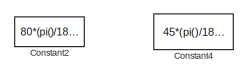
[diagram: root canvas - part 1/3, top center region]
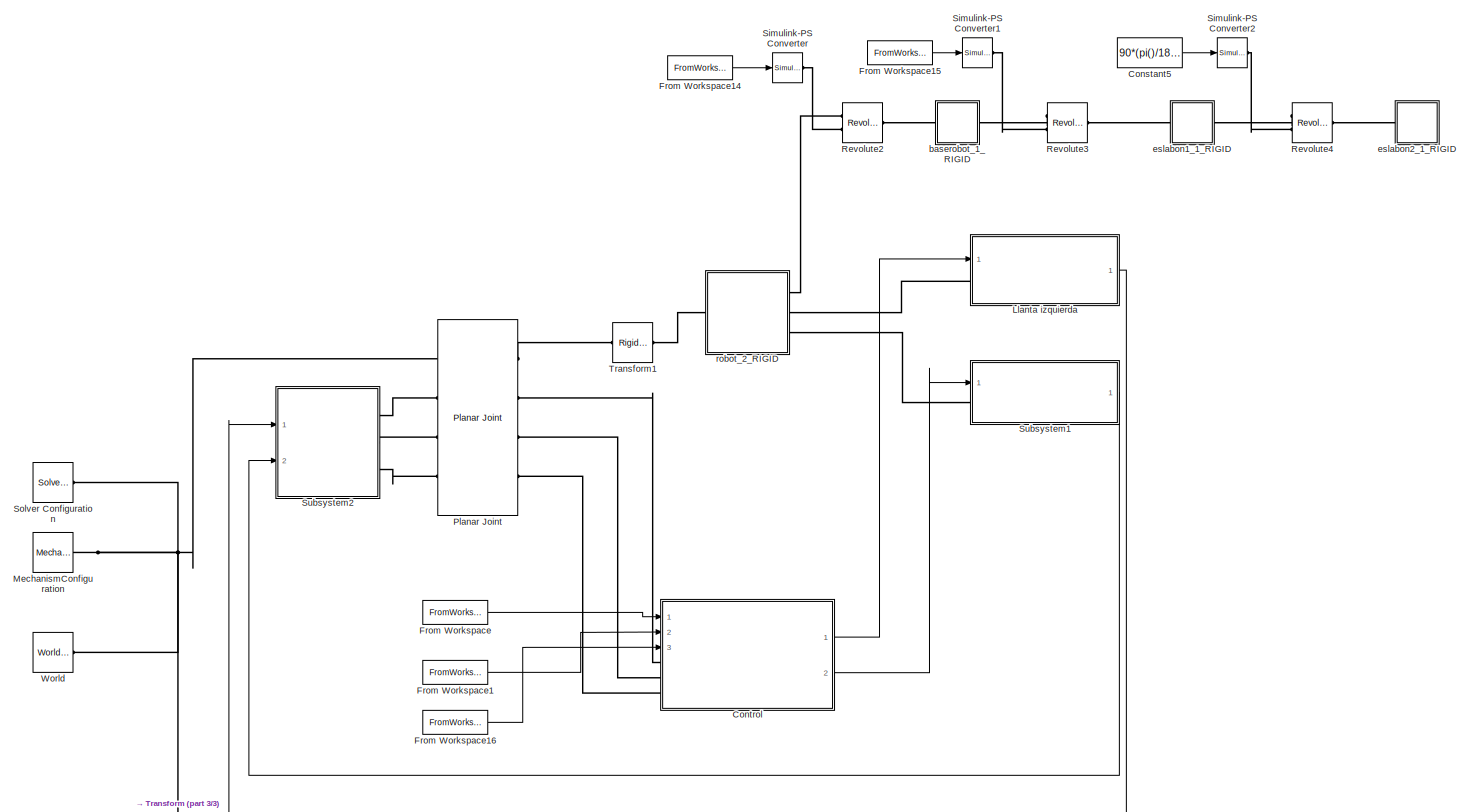
[diagram: root canvas - part 2/3, full width, top band]
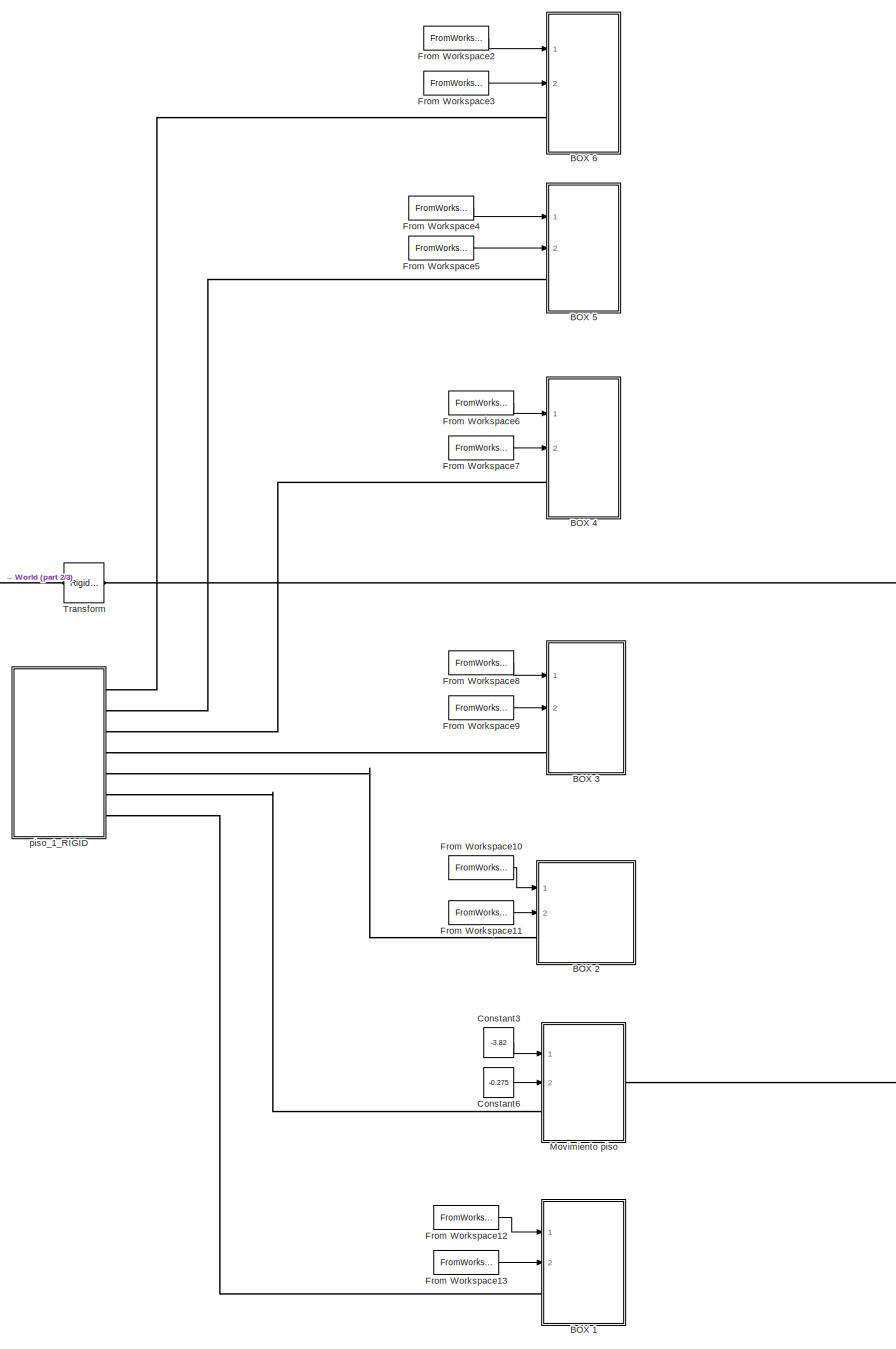
[diagram: root canvas - part 3/3, bottom center region]
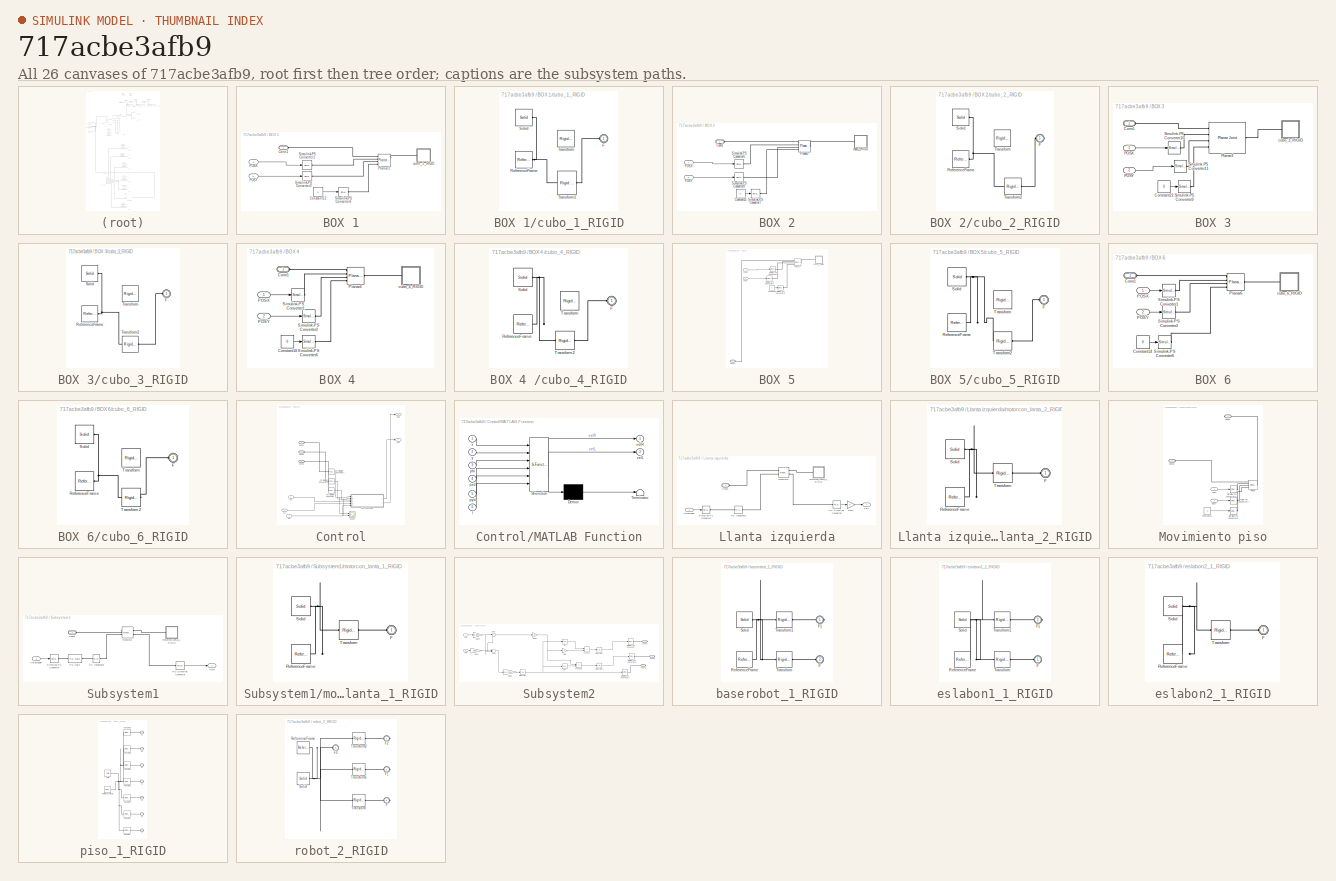
[diagram: thumbnail index - all 26 canvases of the model, root first then tree order]
MODEL slx_717acbe3afb9
KIND model
CONFIG AbsTol = auto
CONFIG EnableMultiTasking = off
CONFIG FixedStep = 0.01
CONFIG MaxStep = auto
CONFIG MinStep = auto
CONFIG RelTol = 1e-6
CONFIG SampleTimeConstraint = Unconstrained
CONFIG Solver = VariableStepAuto
CONFIG SolverName = VariableStepAuto
CONFIG StartTime = 0.0
CONFIG StopTime = 200
WORKSPACE source: external: MATLAB File  (data not in archive)
BLOCK [SubSystem] BOX 1
  Ports = [2, 0, 0, 0, 0, 1]
  RequestExecContextInheritance = off
BLOCK [PMIOPort] BOX 1/Conn1
  Side = Left
BLOCK [Constant] BOX 1/Constant12
  Value = 0
BLOCK [Inport] BOX 1/POSX
  IconDisplay = Port number
BLOCK [Inport] BOX 1/POSY
  IconDisplay = Port number
  Port = 2
BLOCK [Reference] BOX 1/Planar1  REF=sm_lib/Joints/Planar Joint
  Ports = [0, 0, 0, 0, 0, 4, 3]
  SourceBlock = sm_lib/Joints/Planar Joint
  SourceProductBaseCode = MS
  SourceProductName = Simscape Multibody
  SourceType = Planar Joint
BLOCK [Reference] BOX 1/Simulink-PS Converter1  REF=nesl_utility/Simulink-PS
Converter
  Ports = [1, 0, 0, 0, 0, 0, 1]
  SourceBlock = nesl_utility/Simulink-PS\nConverter
  SourceProductBaseCode = SS
  SourceProductName = Simscape
  SourceType = Simulink-PS\nConverter
BLOCK [Reference] BOX 1/Simulink-PS Converter2  REF=nesl_utility/Simulink-PS
Converter
  Ports = [1, 0, 0, 0, 0, 0, 1]
  SourceBlock = nesl_utility/Simulink-PS\nConverter
  SourceProductBaseCode = SS
  SourceProductName = Simscape
  SourceType = Simulink-PS\nConverter
BLOCK [Reference] BOX 1/Simulink-PS Converter6  REF=nesl_utility/Simulink-PS
Converter
  Ports = [1, 0, 0, 0, 0, 0, 1]
  SourceBlock = nesl_utility/Simulink-PS\nConverter
  SourceProductBaseCode = SS
  SourceProductName = Simscape
  SourceType = Simulink-PS\nConverter
BLOCK [SubSystem] BOX 1/cubo_1_RIGID
  Ports = [0, 0, 0, 0, 0, 1]
  RequestExecContextInheritance = off
BLOCK [PMIOPort] BOX 1/cubo_1_RIGID/F
  Side = Left
BLOCK [Reference] BOX 1/cubo_1_RIGID/ReferenceFrame  REF=sm_lib/Frames and
Transforms/Reference
Frame
  Ports = [0, 0, 0, 0, 0, 0, 1]
  SourceBlock = sm_lib/Frames and\nTransforms/Reference\nFrame
  SourceProductBaseCode = MS
  SourceProductName = Simscape Multibody
  SourceType = Reference\nFrame
BLOCK [Reference] BOX 1/cubo_1_RIGID/Solid  REF=sm_lib/Body Elements/Solid
  Ports = [0, 0, 0, 0, 0, 0, 1]
  SourceBlock = sm_lib/Body Elements/Solid
  SourceProductBaseCode = MS
  SourceProductName = Simscape Multibody
  SourceType = Solid
BLOCK [Reference] BOX 1/cubo_1_RIGID/Transform  REF=sm_lib/Frames and
Transforms/Rigid
Transform
  Ports = [0, 0, 0, 0, 0, 1, 1]
  SourceBlock = sm_lib/Frames and\nTransforms/Rigid\nTransform
  SourceProductBaseCode = MS
  SourceProductName = Simscape Multibody
  SourceType = Rigid\nTransform
BLOCK [Reference] BOX 1/cubo_1_RIGID/Transform1  REF=sm_lib/Frames and
Transforms/Rigid
Transform
  Ports = [0, 0, 0, 0, 0, 1, 1]
  SourceBlock = sm_lib/Frames and\nTransforms/Rigid\nTransform
  SourceProductBaseCode = MS
  SourceProductName = Simscape Multibody
  SourceType = Rigid\nTransform
BLOCK [SubSystem] BOX 2
  Ports = [2, 0, 0, 0, 0, 1]
  RequestExecContextInheritance = off
BLOCK [PMIOPort] BOX 2/Conn1
  Side = Left
BLOCK [Constant] BOX 2/Constant13
  Value = 0
BLOCK [Inport] BOX 2/POSX
  IconDisplay = Port number
BLOCK [Inport] BOX 2/POSY
  IconDisplay = Port number
  Port = 2
BLOCK [Reference] BOX 2/Planar2  REF=sm_lib/Joints/Planar Joint
  Ports = [0, 0, 0, 0, 0, 4, 1]
  SourceBlock = sm_lib/Joints/Planar Joint
  SourceProductBaseCode = MS
  SourceProductName = Simscape Multibody
  SourceType = Planar Joint
BLOCK [Reference] BOX 2/Simulink-PS Converter6  REF=nesl_utility/Simulink-PS
Converter
  Ports = [1, 0, 0, 0, 0, 0, 1]
  SourceBlock = nesl_utility/Simulink-PS\nConverter
  SourceProductBaseCode = SS
  SourceProductName = Simscape
  SourceType = Simulink-PS\nConverter
BLOCK [Reference] BOX 2/Simulink-PS Converter7  REF=nesl_utility/Simulink-PS
Converter
  Ports = [1, 0, 0, 0, 0, 0, 1]
  SourceBlock = nesl_utility/Simulink-PS\nConverter
  SourceProductBaseCode = SS
  SourceProductName = Simscape
  SourceType = Simulink-PS\nConverter
BLOCK [Reference] BOX 2/Simulink-PS Converter8  REF=nesl_utility/Simulink-PS
Converter
  Ports = [1, 0, 0, 0, 0, 0, 1]
  SourceBlock = nesl_utility/Simulink-PS\nConverter
  SourceProductBaseCode = SS
  SourceProductName = Simscape
  SourceType = Simulink-PS\nConverter
BLOCK [SubSystem] BOX 2/cubo_2_RIGID
  Ports = [0, 0, 0, 0, 0, 1]
  RequestExecContextInheritance = off
BLOCK [PMIOPort] BOX 2/cubo_2_RIGID/F
  Side = Left
BLOCK [Reference] BOX 2/cubo_2_RIGID/ReferenceFrame  REF=sm_lib/Frames and
Transforms/Reference
Frame
  Ports = [0, 0, 0, 0, 0, 0, 1]
  SourceBlock = sm_lib/Frames and\nTransforms/Reference\nFrame
  SourceProductBaseCode = MS
  SourceProductName = Simscape Multibody
  SourceType = Reference\nFrame
BLOCK [Reference] BOX 2/cubo_2_RIGID/Solid  REF=sm_lib/Body Elements/Solid
  Ports = [0, 0, 0, 0, 0, 0, 1]
  SourceBlock = sm_lib/Body Elements/Solid
  SourceProductBaseCode = MS
  SourceProductName = Simscape Multibody
  SourceType = Solid
BLOCK [Reference] BOX 2/cubo_2_RIGID/Transform  REF=sm_lib/Frames and
Transforms/Rigid
Transform
  Ports = [0, 0, 0, 0, 0, 1, 1]
  SourceBlock = sm_lib/Frames and\nTransforms/Rigid\nTransform
  SourceProductBaseCode = MS
  SourceProductName = Simscape Multibody
  SourceType = Rigid\nTransform
BLOCK [Reference] BOX 2/cubo_2_RIGID/Transform2  REF=sm_lib/Frames and
Transforms/Rigid
Transform
  Ports = [0, 0, 0, 0, 0, 1, 1]
  SourceBlock = sm_lib/Frames and\nTransforms/Rigid\nTransform
  SourceProductBaseCode = MS
  SourceProductName = Simscape Multibody
  SourceType = Rigid\nTransform
BLOCK [SubSystem] BOX 3
  Ports = [2, 0, 0, 0, 0, 1]
  RequestExecContextInheritance = off
BLOCK [PMIOPort] BOX 3/Conn1
  Side = Left
BLOCK [Constant] BOX 3/Constant21
  Value = 0
BLOCK [Inport] BOX 3/POSX
  IconDisplay = Port number
BLOCK [Inport] BOX 3/POSY
  IconDisplay = Port number
  Port = 2
BLOCK [Reference] BOX 3/Planar3  REF=sm_lib/Joints/Planar Joint
  Ports = [0, 0, 0, 0, 0, 4, 1]
  SourceBlock = sm_lib/Joints/Planar Joint
  SourceProductBaseCode = MS
  SourceProductName = Simscape Multibody
  SourceType = Planar Joint
BLOCK [Reference] BOX 3/Simulink-PS Converter10  REF=nesl_utility/Simulink-PS
Converter
  Ports = [1, 0, 0, 0, 0, 0, 1]
  SourceBlock = nesl_utility/Simulink-PS\nConverter
  SourceProductBaseCode = SS
  SourceProductName = Simscape
  SourceType = Simulink-PS\nConverter
BLOCK [Reference] BOX 3/Simulink-PS Converter11  REF=nesl_utility/Simulink-PS
Converter
  Ports = [1, 0, 0, 0, 0, 0, 1]
  SourceBlock = nesl_utility/Simulink-PS\nConverter
  SourceProductBaseCode = SS
  SourceProductName = Simscape
  SourceType = Simulink-PS\nConverter
BLOCK [Reference] BOX 3/Simulink-PS Converter9  REF=nesl_utility/Simulink-PS
Converter
  Ports = [1, 0, 0, 0, 0, 0, 1]
  SourceBlock = nesl_utility/Simulink-PS\nConverter
  SourceProductBaseCode = SS
  SourceProductName = Simscape
  SourceType = Simulink-PS\nConverter
BLOCK [SubSystem] BOX 3/cubo_3_RIGID
  Ports = [0, 0, 0, 0, 0, 1]
  RequestExecContextInheritance = off
BLOCK [PMIOPort] BOX 3/cubo_3_RIGID/F
  Side = Left
BLOCK [Reference] BOX 3/cubo_3_RIGID/ReferenceFrame  REF=sm_lib/Frames and
Transforms/Reference
Frame
  Ports = [0, 0, 0, 0, 0, 0, 1]
  SourceBlock = sm_lib/Frames and\nTransforms/Reference\nFrame
  SourceProductBaseCode = MS
  SourceProductName = Simscape Multibody
  SourceType = Reference\nFrame
BLOCK [Reference] BOX 3/cubo_3_RIGID/Solid  REF=sm_lib/Body Elements/Solid
  Ports = [0, 0, 0, 0, 0, 0, 1]
  SourceBlock = sm_lib/Body Elements/Solid
  SourceProductBaseCode = MS
  SourceProductName = Simscape Multibody
  SourceType = Solid
BLOCK [Reference] BOX 3/cubo_3_RIGID/Transform  REF=sm_lib/Frames and
Transforms/Rigid
Transform
  Ports = [0, 0, 0, 0, 0, 1, 1]
  SourceBlock = sm_lib/Frames and\nTransforms/Rigid\nTransform
  SourceProductBaseCode = MS
  SourceProductName = Simscape Multibody
  SourceType = Rigid\nTransform
BLOCK [Reference] BOX 3/cubo_3_RIGID/Transform2  REF=sm_lib/Frames and
Transforms/Rigid
Transform
  Ports = [0, 0, 0, 0, 0, 1, 1]
  SourceBlock = sm_lib/Frames and\nTransforms/Rigid\nTransform
  SourceProductBaseCode = MS
  SourceProductName = Simscape Multibody
  SourceType = Rigid\nTransform
BLOCK [SubSystem] BOX 4 
  Ports = [2, 0, 0, 0, 0, 1]
  RequestExecContextInheritance = off
BLOCK [PMIOPort] BOX 4 /Conn1
  Side = Left
BLOCK [Constant] BOX 4 /Constant18
  Value = 0
BLOCK [Inport] BOX 4 /POSX
  IconDisplay = Port number
BLOCK [Inport] BOX 4 /POSY
  IconDisplay = Port number
  Port = 2
BLOCK [Reference] BOX 4 /Planar4  REF=sm_lib/Joints/Planar Joint
  Ports = [0, 0, 0, 0, 0, 4, 1]
  SourceBlock = sm_lib/Joints/Planar Joint
  SourceProductBaseCode = MS
  SourceProductName = Simscape Multibody
  SourceType = Planar Joint
BLOCK [Reference] BOX 4 /Simulink-PS Converter1  REF=nesl_utility/Simulink-PS
Converter
  Ports = [1, 0, 0, 0, 0, 0, 1]
  SourceBlock = nesl_utility/Simulink-PS\nConverter
  SourceProductBaseCode = SS
  SourceProductName = Simscape
  SourceType = Simulink-PS\nConverter
BLOCK [Reference] BOX 4 /Simulink-PS Converter2  REF=nesl_utility/Simulink-PS
Converter
  Ports = [1, 0, 0, 0, 0, 0, 1]
  SourceBlock = nesl_utility/Simulink-PS\nConverter
  SourceProductBaseCode = SS
  SourceProductName = Simscape
  SourceType = Simulink-PS\nConverter
BLOCK [Reference] BOX 4 /Simulink-PS Converter6  REF=nesl_utility/Simulink-PS
Converter
  Ports = [1, 0, 0, 0, 0, 0, 1]
  SourceBlock = nesl_utility/Simulink-PS\nConverter
  SourceProductBaseCode = SS
  SourceProductName = Simscape
  SourceType = Simulink-PS\nConverter
BLOCK [SubSystem] BOX 4 /cubo_4_RIGID
  Ports = [0, 0, 0, 0, 0, 1]
  RequestExecContextInheritance = off
BLOCK [PMIOPort] BOX 4 /cubo_4_RIGID/F
  Side = Left
BLOCK [Reference] BOX 4 /cubo_4_RIGID/ReferenceFrame  REF=sm_lib/Frames and
Transforms/Reference
Frame
  Ports = [0, 0, 0, 0, 0, 0, 1]
  SourceBlock = sm_lib/Frames and\nTransforms/Reference\nFrame
  SourceProductBaseCode = MS
  SourceProductName = Simscape Multibody
  SourceType = Reference\nFrame
BLOCK [Reference] BOX 4 /cubo_4_RIGID/Solid  REF=sm_lib/Body Elements/Solid
  Ports = [0, 0, 0, 0, 0, 0, 1]
  SourceBlock = sm_lib/Body Elements/Solid
  SourceProductBaseCode = MS
  SourceProductName = Simscape Multibody
  SourceType = Solid
BLOCK [Reference] BOX 4 /cubo_4_RIGID/Transform  REF=sm_lib/Frames and
Transforms/Rigid
Transform
  Ports = [0, 0, 0, 0, 0, 1, 1]
  SourceBlock = sm_lib/Frames and\nTransforms/Rigid\nTransform
  SourceProductBaseCode = MS
  SourceProductName = Simscape Multibody
  SourceType = Rigid\nTransform
BLOCK [Reference] BOX 4 /cubo_4_RIGID/Transform2  REF=sm_lib/Frames and
Transforms/Rigid
Transform
  Ports = [0, 0, 0, 0, 0, 1, 1]
  SourceBlock = sm_lib/Frames and\nTransforms/Rigid\nTransform
  SourceProductBaseCode = MS
  SourceProductName = Simscape Multibody
  SourceType = Rigid\nTransform
BLOCK [SubSystem] BOX 5
  Ports = [2, 0, 0, 0, 0, 1]
  RequestExecContextInheritance = off
BLOCK [PMIOPort] BOX 5/Conn1
  Side = Left
BLOCK [Constant] BOX 5/Constant16
  Value = 0
BLOCK [Inport] BOX 5/POSX
  IconDisplay = Port number
BLOCK [Inport] BOX 5/POSY
  IconDisplay = Port number
  Port = 2
BLOCK [Reference] BOX 5/Planar5  REF=sm_lib/Joints/Planar Joint
  Ports = [0, 0, 0, 0, 0, 4, 1]
  SourceBlock = sm_lib/Joints/Planar Joint
  SourceProductBaseCode = MS
  SourceProductName = Simscape Multibody
  SourceType = Planar Joint
BLOCK [Reference] BOX 5/Simulink-PS Converter1  REF=nesl_utility/Simulink-PS
Converter
  Ports = [1, 0, 0, 0, 0, 0, 1]
  SourceBlock = nesl_utility/Simulink-PS\nConverter
  SourceProductBaseCode = SS
  SourceProductName = Simscape
  SourceType = Simulink-PS\nConverter
BLOCK [Reference] BOX 5/Simulink-PS Converter2  REF=nesl_utility/Simulink-PS
Converter
  Ports = [1, 0, 0, 0, 0, 0, 1]
  SourceBlock = nesl_utility/Simulink-PS\nConverter
  SourceProductBaseCode = SS
  SourceProductName = Simscape
  SourceType = Simulink-PS\nConverter
BLOCK [Reference] BOX 5/Simulink-PS Converter6  REF=nesl_utility/Simulink-PS
Converter
  Ports = [1, 0, 0, 0, 0, 0, 1]
  SourceBlock = nesl_utility/Simulink-PS\nConverter
  SourceProductBaseCode = SS
  SourceProductName = Simscape
  SourceType = Simulink-PS\nConverter
BLOCK [SubSystem] BOX 5/cubo_5_RIGID
  Ports = [0, 0, 0, 0, 0, 1]
  RequestExecContextInheritance = off
BLOCK [PMIOPort] BOX 5/cubo_5_RIGID/F
  Side = Left
BLOCK [Reference] BOX 5/cubo_5_RIGID/ReferenceFrame  REF=sm_lib/Frames and
Transforms/Reference
Frame
  Ports = [0, 0, 0, 0, 0, 0, 1]
  SourceBlock = sm_lib/Frames and\nTransforms/Reference\nFrame
  SourceProductBaseCode = MS
  SourceProductName = Simscape Multibody
  SourceType = Reference\nFrame
BLOCK [Reference] BOX 5/cubo_5_RIGID/Solid  REF=sm_lib/Body Elements/Solid
  Ports = [0, 0, 0, 0, 0, 0, 1]
  SourceBlock = sm_lib/Body Elements/Solid
  SourceProductBaseCode = MS
  SourceProductName = Simscape Multibody
  SourceType = Solid
BLOCK [Reference] BOX 5/cubo_5_RIGID/Transform  REF=sm_lib/Frames and
Transforms/Rigid
Transform
  Ports = [0, 0, 0, 0, 0, 1, 1]
  SourceBlock = sm_lib/Frames and\nTransforms/Rigid\nTransform
  SourceProductBaseCode = MS
  SourceProductName = Simscape Multibody
  SourceType = Rigid\nTransform
BLOCK [Reference] BOX 5/cubo_5_RIGID/Transform2  REF=sm_lib/Frames and
Transforms/Rigid
Transform
  Ports = [0, 0, 0, 0, 0, 1, 1]
  SourceBlock = sm_lib/Frames and\nTransforms/Rigid\nTransform
  SourceProductBaseCode = MS
  SourceProductName = Simscape Multibody
  SourceType = Rigid\nTransform
BLOCK [SubSystem] BOX 6
  Ports = [2, 0, 0, 0, 0, 1]
  RequestExecContextInheritance = off
BLOCK [PMIOPort] BOX 6/Conn1
  Side = Left
BLOCK [Constant] BOX 6/Constant14
  Value = 0
BLOCK [Inport] BOX 6/POSX
  IconDisplay = Port number
BLOCK [Inport] BOX 6/POSY
  IconDisplay = Port number
  Port = 2
BLOCK [Reference] BOX 6/Planar6  REF=sm_lib/Joints/Planar Joint
  Ports = [0, 0, 0, 0, 0, 4, 1]
  SourceBlock = sm_lib/Joints/Planar Joint
  SourceProductBaseCode = MS
  SourceProductName = Simscape Multibody
  SourceType = Planar Joint
BLOCK [Reference] BOX 6/Simulink-PS Converter1  REF=nesl_utility/Simulink-PS
Converter
  Ports = [1, 0, 0, 0, 0, 0, 1]
  SourceBlock = nesl_utility/Simulink-PS\nConverter
  SourceProductBaseCode = SS
  SourceProductName = Simscape
  SourceType = Simulink-PS\nConverter
BLOCK [Reference] BOX 6/Simulink-PS Converter2  REF=nesl_utility/Simulink-PS
Converter
  Ports = [1, 0, 0, 0, 0, 0, 1]
  SourceBlock = nesl_utility/Simulink-PS\nConverter
  SourceProductBaseCode = SS
  SourceProductName = Simscape
  SourceType = Simulink-PS\nConverter
BLOCK [Reference] BOX 6/Simulink-PS Converter6  REF=nesl_utility/Simulink-PS
Converter
  Ports = [1, 0, 0, 0, 0, 0, 1]
  SourceBlock = nesl_utility/Simulink-PS\nConverter
  SourceProductBaseCode = SS
  SourceProductName = Simscape
  SourceType = Simulink-PS\nConverter
BLOCK [SubSystem] BOX 6/cubo_6_RIGID
  Ports = [0, 0, 0, 0, 0, 1]
  RequestExecContextInheritance = off
BLOCK [PMIOPort] BOX 6/cubo_6_RIGID/F
  Side = Left
BLOCK [Reference] BOX 6/cubo_6_RIGID/ReferenceFrame  REF=sm_lib/Frames and
Transforms/Reference
Frame
  Ports = [0, 0, 0, 0, 0, 0, 1]
  SourceBlock = sm_lib/Frames and\nTransforms/Reference\nFrame
  SourceProductBaseCode = MS
  SourceProductName = Simscape Multibody
  SourceType = Reference\nFrame
BLOCK [Reference] BOX 6/cubo_6_RIGID/Solid  REF=sm_lib/Body Elements/Solid
  Ports = [0, 0, 0, 0, 0, 0, 1]
  SourceBlock = sm_lib/Body Elements/Solid
  SourceProductBaseCode = MS
  SourceProductName = Simscape Multibody
  SourceType = Solid
BLOCK [Reference] BOX 6/cubo_6_RIGID/Transform  REF=sm_lib/Frames and
Transforms/Rigid
Transform
  Ports = [0, 0, 0, 0, 0, 1, 1]
  SourceBlock = sm_lib/Frames and\nTransforms/Rigid\nTransform
  SourceProductBaseCode = MS
  SourceProductName = Simscape Multibody
  SourceType = Rigid\nTransform
BLOCK [Reference] BOX 6/cubo_6_RIGID/Transform2  REF=sm_lib/Frames and
Transforms/Rigid
Transform
  Ports = [0, 0, 0, 0, 0, 1, 1]
  SourceBlock = sm_lib/Frames and\nTransforms/Rigid\nTransform
  SourceProductBaseCode = MS
  SourceProductName = Simscape Multibody
  SourceType = Rigid\nTransform
BLOCK [Constant] Constant2
  Value = 80*(pi()/180)
BLOCK [Constant] Constant3
  Value = -3.82
BLOCK [Constant] Constant4
  Value = 45*(pi()/180)
BLOCK [Constant] Constant5
  Value = 90*(pi()/180)
BLOCK [Constant] Constant6
  Value = -0.275
BLOCK [SubSystem] Control
  Ports = [3, 2, 0, 0, 0, 3]
  RequestExecContextInheritance = off
BLOCK [PMIOPort] Control/Conn1
  Side = Left
BLOCK [PMIOPort] Control/Conn2
  Port = 2
  Side = Left
BLOCK [PMIOPort] Control/Conn3
  Port = 3
  Side = Left
BLOCK [Inport] Control/In1
  IconDisplay = Port number
BLOCK [Inport] Control/In2
  IconDisplay = Port number
  Port = 2
BLOCK [Inport] Control/In3
  IconDisplay = Port number
  Port = 3
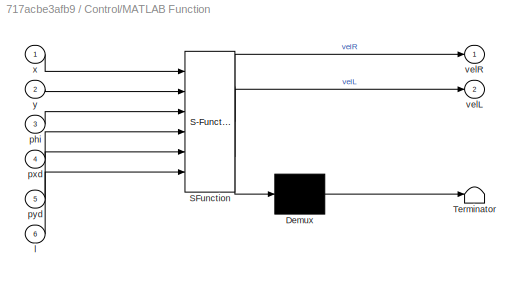
BLOCK [SubSystem] Control/MATLAB Function
  ErrorFcn = Stateflow.Translate.translate
  PermitHierarchicalResolution = ExplicitOnly
  Ports = [6, 2]
  RequestExecContextInheritance = off
  SFBlockType = MATLAB Function
  TreatAsAtomicUnit = on
BLOCK [Demux] Control/MATLAB Function/ Demux 
  Outputs = 1
  Ports = [1, 1]
BLOCK [S-Function] Control/MATLAB Function/ SFunction 
  EnableBusSupport = on
  FunctionName = sf_sfun
  PortCounts = [6 3]
  Ports = [6, 3]
  SFcnIsStateOwnerBlock = off
  SFunctionDeploymentMode = off
  Tag = Stateflow S-Function robotprueba3 2
BLOCK [Terminator] Control/MATLAB Function/ Terminator 
BLOCK [Inport] Control/MATLAB Function/l
  IconDisplay = Port number
  Port = 6
BLOCK [Inport] Control/MATLAB Function/phi
  IconDisplay = Port number
  Port = 3
BLOCK [Inport] Control/MATLAB Function/pxd
  IconDisplay = Port number
  Port = 4
BLOCK [Inport] Control/MATLAB Function/pyd
  IconDisplay = Port number
  Port = 5
BLOCK [Outport] Control/MATLAB Function/velL
  IconDisplay = Port number
  Port = 2
BLOCK [Outport] Control/MATLAB Function/velR
  IconDisplay = Port number
BLOCK [Inport] Control/MATLAB Function/x
  IconDisplay = Port number
BLOCK [Inport] Control/MATLAB Function/y
  IconDisplay = Port number
  Port = 2
BLOCK [Outport] Control/Out1
  IconDisplay = Port number
BLOCK [Outport] Control/Out2
  IconDisplay = Port number
  Port = 2
BLOCK [Reference] Control/PS-Simulink Converter  REF=nesl_utility/PS-Simulink
Converter
  Ports = [0, 1, 0, 0, 0, 1]
  SourceBlock = nesl_utility/PS-Simulink\nConverter
  SourceProductBaseCode = SS
  SourceProductName = Simscape
  SourceType = PS-Simulink\nConverter
BLOCK [Reference] Control/PS-Simulink Converter1  REF=nesl_utility/PS-Simulink
Converter
  Ports = [0, 1, 0, 0, 0, 1]
  SourceBlock = nesl_utility/PS-Simulink\nConverter
  SourceProductBaseCode = SS
  SourceProductName = Simscape
  SourceType = PS-Simulink\nConverter
BLOCK [Reference] Control/PS-Simulink Converter2  REF=nesl_utility/PS-Simulink
Converter
  Ports = [0, 1, 0, 0, 0, 1]
  SourceBlock = nesl_utility/PS-Simulink\nConverter
  SourceProductBaseCode = SS
  SourceProductName = Simscape
  SourceType = PS-Simulink\nConverter
BLOCK [Scope] Control/Scope
  Floating = off
  NumInputPorts = 2
  Ports = [2]
  ScopeSpecificationString = Simulink.scopes.TimeScopeBlockCfg('CurrentConfiguration', extmgr.ConfigurationSet(extmgr.Configuration('Core','General UI',true),extmgr.Configuration('Core','Source UI',true),extmgr.Configuration('Sources','WiredSimulink',true),extmgr.Configuration('Visuals','Time Domain',true,'SerializedDisplays',{struct('MinYLimReal','-0.42707','MaxYLimReal','3.84361','YLabelReal','','MinYLimMag','0.00000','MaxY...<+1417ch>
BLOCK [FromWorkspace] From Workspace
  SampleTime = 1
  VariableName = X
  ZeroCross = on
BLOCK [FromWorkspace] From Workspace1
  SampleTime = 1
  VariableName = Y
  ZeroCross = on
BLOCK [FromWorkspace] From Workspace10
  OutDataTypeStr = double
  SampleTime = 1
  VariableName = box2X
  ZeroCross = on
BLOCK [FromWorkspace] From Workspace11
  OutDataTypeStr = double
  SampleTime = 1
  VariableName = box2Y
  ZeroCross = on
BLOCK [FromWorkspace] From Workspace12
  OutDataTypeStr = double
  SampleTime = 1
  VariableName = box1X
  ZeroCross = on
BLOCK [FromWorkspace] From Workspace13
  OutDataTypeStr = double
  SampleTime = 1
  VariableName = box1Y
  ZeroCross = on
BLOCK [FromWorkspace] From Workspace14
  SampleTime = 1
  VariableName = angulo1tot
  ZeroCross = on
BLOCK [FromWorkspace] From Workspace15
  SampleTime = 1
  VariableName = angulo2tot
  ZeroCross = on
BLOCK [FromWorkspace] From Workspace16
  SampleTime = 1
  VariableName = lo
  ZeroCross = on
BLOCK [FromWorkspace] From Workspace2
  OutDataTypeStr = double
  SampleTime = 1
  VariableName = box6X
  ZeroCross = on
BLOCK [FromWorkspace] From Workspace3
  OutDataTypeStr = double
  SampleTime = 1
  VariableName = box6Y
  ZeroCross = on
BLOCK [FromWorkspace] From Workspace4
  SampleTime = 1
  VariableName = box5X
  ZeroCross = on
BLOCK [FromWorkspace] From Workspace5
  SampleTime = 1
  VariableName = box5Y
  ZeroCross = on
BLOCK [FromWorkspace] From Workspace6
  OutDataTypeStr = double
  SampleTime = 1
  VariableName = box4X
  ZeroCross = on
BLOCK [FromWorkspace] From Workspace7
  OutDataTypeStr = double
  SampleTime = 1
  VariableName = box4Y
  ZeroCross = on
BLOCK [FromWorkspace] From Workspace8
  OutDataTypeStr = double
  SampleTime = 1
  VariableName = box3X
  ZeroCross = on
BLOCK [FromWorkspace] From Workspace9
  OutDataTypeStr = double
  SampleTime = 1
  VariableName = box3Y
  ZeroCross = on
BLOCK [SubSystem] Llanta izquierda
  Ports = [1, 1, 0, 0, 0, 1]
  RequestExecContextInheritance = off
BLOCK [PMIOPort] Llanta izquierda/Conn1
  Side = Left
BLOCK [Gain] Llanta izquierda/Gain
  OutDataTypeStr = Inherit: Inherit via internal rule
  ParamDataTypeStr = Inherit: Inherit via internal rule
  SaturateOnIntegerOverflow = off
BLOCK [Reference] Llanta izquierda/PS Integrator  REF=fl_lib/Physical Signals/Linear Operators/PS Integrator
  Ports = [0, 0, 0, 0, 0, 1, 1]
  SourceBlock = fl_lib/Physical Signals/Linear Operators/PS Integrator
  SourceProductBaseCode = SS
  SourceProductName = Simscape
  SourceType = PS Integrator
BLOCK [Reference] Llanta izquierda/PS-Simulink Converter  REF=nesl_utility/PS-Simulink
Converter
  Ports = [0, 1, 0, 0, 0, 1]
  SourceBlock = nesl_utility/PS-Simulink\nConverter
  SourceProductBaseCode = SS
  SourceProductName = Simscape
  SourceType = PS-Simulink\nConverter
BLOCK [Reference] Llanta izquierda/Revolute1  REF=sm_lib/Joints/Revolute Joint
  Ports = [0, 0, 0, 0, 0, 2, 2]
  SourceBlock = sm_lib/Joints/Revolute Joint
  SourceProductBaseCode = MS
  SourceProductName = Simscape Multibody
  SourceType = Revolute Joint
BLOCK [Reference] Llanta izquierda/Simulink-PS Converter  REF=nesl_utility/Simulink-PS
Converter
  Ports = [1, 0, 0, 0, 0, 0, 1]
  SourceBlock = nesl_utility/Simulink-PS\nConverter
  SourceProductBaseCode = SS
  SourceProductName = Simscape
  SourceType = Simulink-PS\nConverter
BLOCK [Outport] Llanta izquierda/VelL
  IconDisplay = Port number
BLOCK [Inport] Llanta izquierda/VelocidadL
  IconDisplay = Port number
BLOCK [SubSystem] Llanta izquierda/motorcon_lanta_2_RIGID
  Ports = [0, 0, 0, 0, 0, 1]
  RequestExecContextInheritance = off
BLOCK [PMIOPort] Llanta izquierda/motorcon_lanta_2_RIGID/F
  Side = Left
BLOCK [Reference] Llanta izquierda/motorcon_lanta_2_RIGID/ReferenceFrame  REF=sm_lib/Frames and
Transforms/Reference
Frame
  Ports = [0, 0, 0, 0, 0, 0, 1]
  SourceBlock = sm_lib/Frames and\nTransforms/Reference\nFrame
  SourceProductBaseCode = MS
  SourceProductName = Simscape Multibody
  SourceType = Reference\nFrame
BLOCK [Reference] Llanta izquierda/motorcon_lanta_2_RIGID/Solid  REF=sm_lib/Body Elements/Solid
  Ports = [0, 0, 0, 0, 0, 0, 1]
  SourceBlock = sm_lib/Body Elements/Solid
  SourceProductBaseCode = MS
  SourceProductName = Simscape Multibody
  SourceType = Solid
BLOCK [Reference] Llanta izquierda/motorcon_lanta_2_RIGID/Transform  REF=sm_lib/Frames and
Transforms/Rigid
Transform
  Ports = [0, 0, 0, 0, 0, 1, 1]
  SourceBlock = sm_lib/Frames and\nTransforms/Rigid\nTransform
  SourceProductBaseCode = MS
  SourceProductName = Simscape Multibody
  SourceType = Rigid\nTransform
BLOCK [Reference] MechanismConfiguration  REF=sm_lib/Utilities/Mechanism
Configuration
  Ports = [0, 0, 0, 0, 0, 0, 1]
  SourceBlock = sm_lib/Utilities/Mechanism\nConfiguration
  SourceProductBaseCode = MS
  SourceProductName = Simscape Multibody
  SourceType = Mechanism\nConfiguration
BLOCK [SubSystem] Movimiento piso
  Ports = [2, 0, 0, 0, 0, 1, 1]
  RequestExecContextInheritance = off
BLOCK [PMIOPort] Movimiento piso/Conn1
  Side = Right
BLOCK [PMIOPort] Movimiento piso/Conn2
  Port = 2
  Side = Left
BLOCK [Constant] Movimiento piso/Constant11
  Value = 0
BLOCK [Reference] Movimiento piso/Planar  REF=sm_lib/Joints/Planar Joint
  Ports = [0, 0, 0, 0, 0, 4, 1]
  SourceBlock = sm_lib/Joints/Planar Joint
  SourceProductBaseCode = MS
  SourceProductName = Simscape Multibody
  SourceType = Planar Joint
BLOCK [Reference] Movimiento piso/Simulink-PS Converter3  REF=nesl_utility/Simulink-PS
Converter
  Ports = [1, 0, 0, 0, 0, 0, 1]
  SourceBlock = nesl_utility/Simulink-PS\nConverter
  SourceProductBaseCode = SS
  SourceProductName = Simscape
  SourceType = Simulink-PS\nConverter
BLOCK [Reference] Movimiento piso/Simulink-PS Converter4  REF=nesl_utility/Simulink-PS
Converter
  Ports = [1, 0, 0, 0, 0, 0, 1]
  SourceBlock = nesl_utility/Simulink-PS\nConverter
  SourceProductBaseCode = SS
  SourceProductName = Simscape
  SourceType = Simulink-PS\nConverter
BLOCK [Reference] Movimiento piso/Simulink-PS Converter5  REF=nesl_utility/Simulink-PS
Converter
  Ports = [1, 0, 0, 0, 0, 0, 1]
  SourceBlock = nesl_utility/Simulink-PS\nConverter
  SourceProductBaseCode = SS
  SourceProductName = Simscape
  SourceType = Simulink-PS\nConverter
BLOCK [Inport] Movimiento piso/posx 
  IconDisplay = Port number
BLOCK [Inport] Movimiento piso/posy
  IconDisplay = Port number
  Port = 2
BLOCK [Reference] Planar Joint  REF=sm_lib/Joints/Planar Joint
  Ports = [0, 0, 0, 0, 0, 4, 4]
  SourceBlock = sm_lib/Joints/Planar Joint
  SourceProductBaseCode = MS
  SourceProductName = Simscape Multibody
  SourceType = Planar Joint
BLOCK [Reference] Revolute2  REF=sm_lib/Joints/Revolute Joint
  Ports = [0, 0, 0, 0, 0, 2, 1]
  SourceBlock = sm_lib/Joints/Revolute Joint
  SourceProductBaseCode = MS
  SourceProductName = Simscape Multibody
  SourceType = Revolute Joint
BLOCK [Reference] Revolute3  REF=sm_lib/Joints/Revolute Joint
  Ports = [0, 0, 0, 0, 0, 2, 1]
  SourceBlock = sm_lib/Joints/Revolute Joint
  SourceProductBaseCode = MS
  SourceProductName = Simscape Multibody
  SourceType = Revolute Joint
BLOCK [Reference] Revolute4  REF=sm_lib/Joints/Revolute Joint
  Ports = [0, 0, 0, 0, 0, 2, 1]
  SourceBlock = sm_lib/Joints/Revolute Joint
  SourceProductBaseCode = MS
  SourceProductName = Simscape Multibody
  SourceType = Revolute Joint
BLOCK [Reference] Simulink-PS Converter  REF=nesl_utility/Simulink-PS
Converter
  Ports = [1, 0, 0, 0, 0, 0, 1]
  SourceBlock = nesl_utility/Simulink-PS\nConverter
  SourceProductBaseCode = SS
  SourceProductName = Simscape
  SourceType = Simulink-PS\nConverter
BLOCK [Reference] Simulink-PS Converter1  REF=nesl_utility/Simulink-PS
Converter
  Ports = [1, 0, 0, 0, 0, 0, 1]
  SourceBlock = nesl_utility/Simulink-PS\nConverter
  SourceProductBaseCode = SS
  SourceProductName = Simscape
  SourceType = Simulink-PS\nConverter
BLOCK [Reference] Simulink-PS Converter2  REF=nesl_utility/Simulink-PS
Converter
  Ports = [1, 0, 0, 0, 0, 0, 1]
  SourceBlock = nesl_utility/Simulink-PS\nConverter
  SourceProductBaseCode = SS
  SourceProductName = Simscape
  SourceType = Simulink-PS\nConverter
BLOCK [Reference] Solver Configuration  REF=nesl_utility/Solver
Configuration
  Ports = [0, 0, 0, 0, 0, 0, 1]
  SourceBlock = nesl_utility/Solver\nConfiguration
  SourceProductBaseCode = SS
  SourceProductName = Simscape
  SourceType = Solver\nConfiguration
BLOCK [SubSystem] Subsystem1
  Ports = [1, 1, 0, 0, 0, 1]
  RequestExecContextInheritance = off
BLOCK [PMIOPort] Subsystem1/Conn1
  Side = Left
BLOCK [Reference] Subsystem1/PS Gain  REF=fl_lib/Physical Signals/Functions/PS Gain
  Ports = [0, 0, 0, 0, 0, 1, 1]
  SourceBlock = fl_lib/Physical Signals/Functions/PS Gain
  SourceProductBaseCode = SS
  SourceProductName = Simscape
  SourceType = PS Gain
BLOCK [Reference] Subsystem1/PS Integrator  REF=fl_lib/Physical Signals/Linear Operators/PS Integrator
  Ports = [0, 0, 0, 0, 0, 1, 1]
  SourceBlock = fl_lib/Physical Signals/Linear Operators/PS Integrator
  SourceProductBaseCode = SS
  SourceProductName = Simscape
  SourceType = PS Integrator
BLOCK [Reference] Subsystem1/PS-Simulink Converter  REF=nesl_utility/PS-Simulink
Converter
  Ports = [0, 1, 0, 0, 0, 1]
  SourceBlock = nesl_utility/PS-Simulink\nConverter
  SourceProductBaseCode = SS
  SourceProductName = Simscape
  SourceType = PS-Simulink\nConverter
BLOCK [Reference] Subsystem1/Revolute  REF=sm_lib/Joints/Revolute Joint
  Ports = [0, 0, 0, 0, 0, 2, 2]
  SourceBlock = sm_lib/Joints/Revolute Joint
  SourceProductBaseCode = MS
  SourceProductName = Simscape Multibody
  SourceType = Revolute Joint
BLOCK [Reference] Subsystem1/Simulink-PS Converter  REF=nesl_utility/Simulink-PS
Converter
  Ports = [1, 0, 0, 0, 0, 0, 1]
  SourceBlock = nesl_utility/Simulink-PS\nConverter
  SourceProductBaseCode = SS
  SourceProductName = Simscape
  SourceType = Simulink-PS\nConverter
BLOCK [Outport] Subsystem1/VelR
  IconDisplay = Port number
BLOCK [Inport] Subsystem1/VelocidadR
  IconDisplay = Port number
BLOCK [SubSystem] Subsystem1/motorcon_lanta_1_RIGID
  Ports = [0, 0, 0, 0, 0, 1]
  RequestExecContextInheritance = off
BLOCK [PMIOPort] Subsystem1/motorcon_lanta_1_RIGID/F
  Side = Left
BLOCK [Reference] Subsystem1/motorcon_lanta_1_RIGID/ReferenceFrame  REF=sm_lib/Frames and
Transforms/Reference
Frame
  Ports = [0, 0, 0, 0, 0, 0, 1]
  SourceBlock = sm_lib/Frames and\nTransforms/Reference\nFrame
  SourceProductBaseCode = MS
  SourceProductName = Simscape Multibody
  SourceType = Reference\nFrame
BLOCK [Reference] Subsystem1/motorcon_lanta_1_RIGID/Solid  REF=sm_lib/Body Elements/Solid
  Ports = [0, 0, 0, 0, 0, 0, 1]
  SourceBlock = sm_lib/Body Elements/Solid
  SourceProductBaseCode = MS
  SourceProductName = Simscape Multibody
  SourceType = Solid
BLOCK [Reference] Subsystem1/motorcon_lanta_1_RIGID/Transform  REF=sm_lib/Frames and
Transforms/Rigid
Transform
  Ports = [0, 0, 0, 0, 0, 1, 1]
  SourceBlock = sm_lib/Frames and\nTransforms/Rigid\nTransform
  SourceProductBaseCode = MS
  SourceProductName = Simscape Multibody
  SourceType = Rigid\nTransform
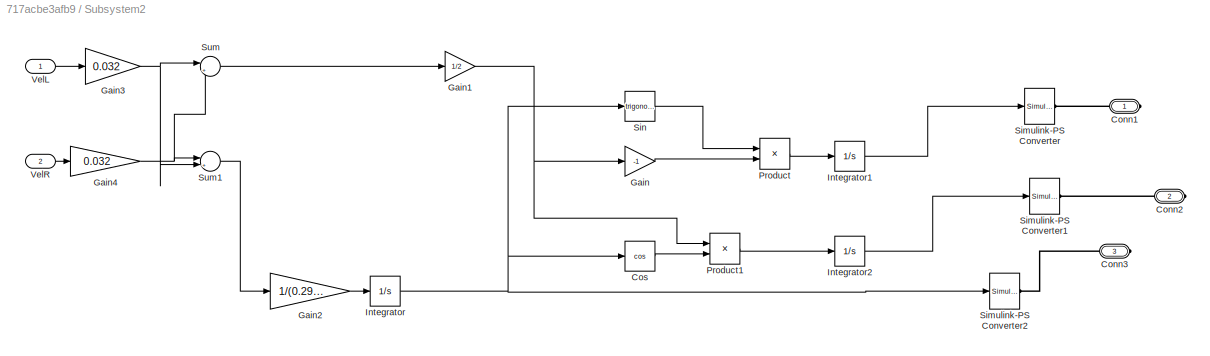
BLOCK [SubSystem] Subsystem2
  Ports = [2, 0, 0, 0, 0, 0, 3]
  RequestExecContextInheritance = off
BLOCK [PMIOPort] Subsystem2/Conn1
  Side = Right
BLOCK [PMIOPort] Subsystem2/Conn2
  Port = 2
  Side = Right
BLOCK [PMIOPort] Subsystem2/Conn3
  Port = 3
  Side = Right
BLOCK [Trigonometry] Subsystem2/Cos
  Operator = cos
  Ports = [1, 1]
BLOCK [Gain] Subsystem2/Gain
  Gain = -1
  OutDataTypeStr = Inherit: Inherit via internal rule
  ParamDataTypeStr = Inherit: Inherit via internal rule
  SaturateOnIntegerOverflow = off
BLOCK [Gain] Subsystem2/Gain1
  Gain = 1/2
  OutDataTypeStr = Inherit: Inherit via internal rule
  ParamDataTypeStr = Inherit: Inherit via internal rule
  SaturateOnIntegerOverflow = off
BLOCK [Gain] Subsystem2/Gain2
  Gain = 1/(0.29184)
  OutDataTypeStr = Inherit: Inherit via internal rule
  ParamDataTypeStr = Inherit: Inherit via internal rule
  SaturateOnIntegerOverflow = off
BLOCK [Gain] Subsystem2/Gain3
  Gain = 0.032
  OutDataTypeStr = Inherit: Inherit via internal rule
  ParamDataTypeStr = Inherit: Inherit via internal rule
  SaturateOnIntegerOverflow = off
BLOCK [Gain] Subsystem2/Gain4
  Gain = 0.032
  OutDataTypeStr = Inherit: Inherit via internal rule
  ParamDataTypeStr = Inherit: Inherit via internal rule
  SaturateOnIntegerOverflow = off
BLOCK [Integrator] Subsystem2/Integrator
  Ports = [1, 1]
BLOCK [Integrator] Subsystem2/Integrator1
  Ports = [1, 1]
BLOCK [Integrator] Subsystem2/Integrator2
  Ports = [1, 1]
BLOCK [Product] Subsystem2/Product
  InputSameDT = off
  OutDataTypeStr = Inherit: Inherit via internal rule
  Ports = [2, 1]
  RndMeth = Floor
  SaturateOnIntegerOverflow = off
BLOCK [Product] Subsystem2/Product1
  InputSameDT = off
  OutDataTypeStr = Inherit: Inherit via internal rule
  Ports = [2, 1]
  RndMeth = Floor
  SaturateOnIntegerOverflow = off
BLOCK [Reference] Subsystem2/Simulink-PS Converter  REF=nesl_utility/Simulink-PS
Converter
  Ports = [1, 0, 0, 0, 0, 0, 1]
  SourceBlock = nesl_utility/Simulink-PS\nConverter
  SourceProductBaseCode = SS
  SourceProductName = Simscape
  SourceType = Simulink-PS\nConverter
BLOCK [Reference] Subsystem2/Simulink-PS Converter1  REF=nesl_utility/Simulink-PS
Converter
  Ports = [1, 0, 0, 0, 0, 0, 1]
  SourceBlock = nesl_utility/Simulink-PS\nConverter
  SourceProductBaseCode = SS
  SourceProductName = Simscape
  SourceType = Simulink-PS\nConverter
BLOCK [Reference] Subsystem2/Simulink-PS Converter2  REF=nesl_utility/Simulink-PS
Converter
  Ports = [1, 0, 0, 0, 0, 0, 1]
  SourceBlock = nesl_utility/Simulink-PS\nConverter
  SourceProductBaseCode = SS
  SourceProductName = Simscape
  SourceType = Simulink-PS\nConverter
BLOCK [Trigonometry] Subsystem2/Sin
  Ports = [1, 1]
BLOCK [Sum] Subsystem2/Sum
  IconShape = round
  InputSameDT = off
  Inputs = |++
  OutDataTypeStr = Inherit: Inherit via internal rule
  Ports = [2, 1]
  SaturateOnIntegerOverflow = off
BLOCK [Sum] Subsystem2/Sum1
  IconShape = round
  InputSameDT = off
  Inputs = |+-
  OutDataTypeStr = Inherit: Inherit via internal rule
  Ports = [2, 1]
  SaturateOnIntegerOverflow = off
BLOCK [Inport] Subsystem2/VelL 
  IconDisplay = Port number
BLOCK [Inport] Subsystem2/VelR
  IconDisplay = Port number
  Port = 2
BLOCK [Reference] Transform  REF=sm_lib/Frames and
Transforms/Rigid
Transform
  Ports = [0, 0, 0, 0, 0, 1, 1]
  SourceBlock = sm_lib/Frames and\nTransforms/Rigid\nTransform
  SourceProductBaseCode = MS
  SourceProductName = Simscape Multibody
  SourceType = Rigid\nTransform
BLOCK [Reference] Transform1  REF=sm_lib/Frames and
Transforms/Rigid
Transform
  Ports = [0, 0, 0, 0, 0, 1, 1]
  SourceBlock = sm_lib/Frames and\nTransforms/Rigid\nTransform
  SourceProductBaseCode = MS
  SourceProductName = Simscape Multibody
  SourceType = Rigid\nTransform
BLOCK [Reference] World  REF=sm_lib/Frames and
Transforms/World Frame
  Ports = [0, 0, 0, 0, 0, 0, 1]
  SourceBlock = sm_lib/Frames and\nTransforms/World Frame
  SourceProductBaseCode = MS
  SourceProductName = Simscape Multibody
  SourceType = World Frame
BLOCK [SubSystem] baserobot_1_RIGID
  Ports = [0, 0, 0, 0, 0, 1, 1]
  RequestExecContextInheritance = off
BLOCK [PMIOPort] baserobot_1_RIGID/F
  Port = 2
  Side = Left
BLOCK [PMIOPort] baserobot_1_RIGID/F1
  Side = Right
BLOCK [Reference] baserobot_1_RIGID/ReferenceFrame  REF=sm_lib/Frames and
Transforms/Reference
Frame
  Ports = [0, 0, 0, 0, 0, 0, 1]
  SourceBlock = sm_lib/Frames and\nTransforms/Reference\nFrame
  SourceProductBaseCode = MS
  SourceProductName = Simscape Multibody
  SourceType = Reference\nFrame
BLOCK [Reference] baserobot_1_RIGID/Solid  REF=sm_lib/Body Elements/Solid
  Ports = [0, 0, 0, 0, 0, 0, 1]
  SourceBlock = sm_lib/Body Elements/Solid
  SourceProductBaseCode = MS
  SourceProductName = Simscape Multibody
  SourceType = Solid
BLOCK [Reference] baserobot_1_RIGID/Transform  REF=sm_lib/Frames and
Transforms/Rigid
Transform
  Ports = [0, 0, 0, 0, 0, 1, 1]
  SourceBlock = sm_lib/Frames and\nTransforms/Rigid\nTransform
  SourceProductBaseCode = MS
  SourceProductName = Simscape Multibody
  SourceType = Rigid\nTransform
BLOCK [Reference] baserobot_1_RIGID/Transform1  REF=sm_lib/Frames and
Transforms/Rigid
Transform
  Ports = [0, 0, 0, 0, 0, 1, 1]
  SourceBlock = sm_lib/Frames and\nTransforms/Rigid\nTransform
  SourceProductBaseCode = MS
  SourceProductName = Simscape Multibody
  SourceType = Rigid\nTransform
BLOCK [SubSystem] eslabon1_1_RIGID
  Ports = [0, 0, 0, 0, 0, 1, 1]
  RequestExecContextInheritance = off
BLOCK [PMIOPort] eslabon1_1_RIGID/F
  Side = Left
BLOCK [PMIOPort] eslabon1_1_RIGID/F1
  Port = 2
  Side = Right
BLOCK [Reference] eslabon1_1_RIGID/ReferenceFrame  REF=sm_lib/Frames and
Transforms/Reference
Frame
  Ports = [0, 0, 0, 0, 0, 0, 1]
  SourceBlock = sm_lib/Frames and\nTransforms/Reference\nFrame
  SourceProductBaseCode = MS
  SourceProductName = Simscape Multibody
  SourceType = Reference\nFrame
BLOCK [Reference] eslabon1_1_RIGID/Solid  REF=sm_lib/Body Elements/Solid
  Ports = [0, 0, 0, 0, 0, 0, 1]
  SourceBlock = sm_lib/Body Elements/Solid
  SourceProductBaseCode = MS
  SourceProductName = Simscape Multibody
  SourceType = Solid
BLOCK [Reference] eslabon1_1_RIGID/Transform  REF=sm_lib/Frames and
Transforms/Rigid
Transform
  Ports = [0, 0, 0, 0, 0, 1, 1]
  SourceBlock = sm_lib/Frames and\nTransforms/Rigid\nTransform
  SourceProductBaseCode = MS
  SourceProductName = Simscape Multibody
  SourceType = Rigid\nTransform
BLOCK [Reference] eslabon1_1_RIGID/Transform1  REF=sm_lib/Frames and
Transforms/Rigid
Transform
  Ports = [0, 0, 0, 0, 0, 1, 1]
  SourceBlock = sm_lib/Frames and\nTransforms/Rigid\nTransform
  SourceProductBaseCode = MS
  SourceProductName = Simscape Multibody
  SourceType = Rigid\nTransform
BLOCK [SubSystem] eslabon2_1_RIGID
  Ports = [0, 0, 0, 0, 0, 1]
  RequestExecContextInheritance = off
BLOCK [PMIOPort] eslabon2_1_RIGID/F
  Side = Left
BLOCK [Reference] eslabon2_1_RIGID/ReferenceFrame  REF=sm_lib/Frames and
Transforms/Reference
Frame
  Ports = [0, 0, 0, 0, 0, 0, 1]
  SourceBlock = sm_lib/Frames and\nTransforms/Reference\nFrame
  SourceProductBaseCode = MS
  SourceProductName = Simscape Multibody
  SourceType = Reference\nFrame
BLOCK [Reference] eslabon2_1_RIGID/Solid  REF=sm_lib/Body Elements/Solid
  Ports = [0, 0, 0, 0, 0, 0, 1]
  SourceBlock = sm_lib/Body Elements/Solid
  SourceProductBaseCode = MS
  SourceProductName = Simscape Multibody
  SourceType = Solid
BLOCK [Reference] eslabon2_1_RIGID/Transform  REF=sm_lib/Frames and
Transforms/Rigid
Transform
  Ports = [0, 0, 0, 0, 0, 1, 1]
  SourceBlock = sm_lib/Frames and\nTransforms/Rigid\nTransform
  SourceProductBaseCode = MS
  SourceProductName = Simscape Multibody
  SourceType = Rigid\nTransform
BLOCK [SubSystem] piso_1_RIGID
  Ports = [0, 0, 0, 0, 0, 0, 7]
  RequestExecContextInheritance = off
BLOCK [PMIOPort] piso_1_RIGID/F
  Port = 6
  Side = Right
BLOCK [PMIOPort] piso_1_RIGID/F1
  Port = 7
  Side = Right
BLOCK [PMIOPort] piso_1_RIGID/F2
  Port = 5
  Side = Right
BLOCK [PMIOPort] piso_1_RIGID/F3
  Port = 4
  Side = Right
BLOCK [PMIOPort] piso_1_RIGID/F4
  Port = 3
  Side = Right
BLOCK [PMIOPort] piso_1_RIGID/F5
  Port = 2
  Side = Right
BLOCK [PMIOPort] piso_1_RIGID/F6
  Side = Right
BLOCK [Reference] piso_1_RIGID/ReferenceFrame  REF=sm_lib/Frames and
Transforms/Reference
Frame
  Ports = [0, 0, 0, 0, 0, 0, 1]
  SourceBlock = sm_lib/Frames and\nTransforms/Reference\nFrame
  SourceProductBaseCode = MS
  SourceProductName = Simscape Multibody
  SourceType = Reference\nFrame
BLOCK [Reference] piso_1_RIGID/Solid  REF=sm_lib/Body Elements/Solid
  Ports = [0, 0, 0, 0, 0, 0, 1]
  SourceBlock = sm_lib/Body Elements/Solid
  SourceProductBaseCode = MS
  SourceProductName = Simscape Multibody
  SourceType = Solid
BLOCK [Reference] piso_1_RIGID/Transform  REF=sm_lib/Frames and
Transforms/Rigid
Transform
  Ports = [0, 0, 0, 0, 0, 1, 1]
  SourceBlock = sm_lib/Frames and\nTransforms/Rigid\nTransform
  SourceProductBaseCode = MS
  SourceProductName = Simscape Multibody
  SourceType = Rigid\nTransform
BLOCK [Reference] piso_1_RIGID/Transform1  REF=sm_lib/Frames and
Transforms/Rigid
Transform
  Ports = [0, 0, 0, 0, 0, 1, 1]
  SourceBlock = sm_lib/Frames and\nTransforms/Rigid\nTransform
  SourceProductBaseCode = MS
  SourceProductName = Simscape Multibody
  SourceType = Rigid\nTransform
BLOCK [Reference] piso_1_RIGID/Transform2  REF=sm_lib/Frames and
Transforms/Rigid
Transform
  Ports = [0, 0, 0, 0, 0, 1, 1]
  SourceBlock = sm_lib/Frames and\nTransforms/Rigid\nTransform
  SourceProductBaseCode = MS
  SourceProductName = Simscape Multibody
  SourceType = Rigid\nTransform
BLOCK [Reference] piso_1_RIGID/Transform3  REF=sm_lib/Frames and
Transforms/Rigid
Transform
  Ports = [0, 0, 0, 0, 0, 1, 1]
  SourceBlock = sm_lib/Frames and\nTransforms/Rigid\nTransform
  SourceProductBaseCode = MS
  SourceProductName = Simscape Multibody
  SourceType = Rigid\nTransform
BLOCK [Reference] piso_1_RIGID/Transform4  REF=sm_lib/Frames and
Transforms/Rigid
Transform
  Ports = [0, 0, 0, 0, 0, 1, 1]
  SourceBlock = sm_lib/Frames and\nTransforms/Rigid\nTransform
  SourceProductBaseCode = MS
  SourceProductName = Simscape Multibody
  SourceType = Rigid\nTransform
BLOCK [Reference] piso_1_RIGID/Transform5  REF=sm_lib/Frames and
Transforms/Rigid
Transform
  Ports = [0, 0, 0, 0, 0, 1, 1]
  SourceBlock = sm_lib/Frames and\nTransforms/Rigid\nTransform
  SourceProductBaseCode = MS
  SourceProductName = Simscape Multibody
  SourceType = Rigid\nTransform
BLOCK [Reference] piso_1_RIGID/Transform6  REF=sm_lib/Frames and
Transforms/Rigid
Transform
  Ports = [0, 0, 0, 0, 0, 1, 1]
  SourceBlock = sm_lib/Frames and\nTransforms/Rigid\nTransform
  SourceProductBaseCode = MS
  SourceProductName = Simscape Multibody
  SourceType = Rigid\nTransform
BLOCK [SubSystem] robot_2_RIGID
  Ports = [0, 0, 0, 0, 0, 1, 3]
  RequestExecContextInheritance = off
BLOCK [PMIOPort] robot_2_RIGID/F
  Port = 3
  Side = Right
BLOCK [PMIOPort] robot_2_RIGID/F1
  Port = 2
  Side = Right
BLOCK [PMIOPort] robot_2_RIGID/F2
  Side = Right
BLOCK [PMIOPort] robot_2_RIGID/F3
  Port = 4
  Side = Left
BLOCK [Reference] robot_2_RIGID/ReferenceFrame  REF=sm_lib/Frames and
Transforms/Reference
Frame
  Ports = [0, 0, 0, 0, 0, 0, 1]
  SourceBlock = sm_lib/Frames and\nTransforms/Reference\nFrame
  SourceProductBaseCode = MS
  SourceProductName = Simscape Multibody
  SourceType = Reference\nFrame
BLOCK [Reference] robot_2_RIGID/Solid  REF=sm_lib/Body Elements/Solid
  Ports = [0, 0, 0, 0, 0, 0, 1]
  SourceBlock = sm_lib/Body Elements/Solid
  SourceProductBaseCode = MS
  SourceProductName = Simscape Multibody
  SourceType = Solid
BLOCK [Reference] robot_2_RIGID/Transform  REF=sm_lib/Frames and
Transforms/Rigid
Transform
  Ports = [0, 0, 0, 0, 0, 1, 1]
  SourceBlock = sm_lib/Frames and\nTransforms/Rigid\nTransform
  SourceProductBaseCode = MS
  SourceProductName = Simscape Multibody
  SourceType = Rigid\nTransform
BLOCK [Reference] robot_2_RIGID/Transform1  REF=sm_lib/Frames and
Transforms/Rigid
Transform
  Ports = [0, 0, 0, 0, 0, 1, 1]
  SourceBlock = sm_lib/Frames and\nTransforms/Rigid\nTransform
  SourceProductBaseCode = MS
  SourceProductName = Simscape Multibody
  SourceType = Rigid\nTransform
BLOCK [Reference] robot_2_RIGID/Transform2  REF=sm_lib/Frames and
Transforms/Rigid
Transform
  Ports = [0, 0, 0, 0, 0, 1, 1]
  SourceBlock = sm_lib/Frames and\nTransforms/Rigid\nTransform
  SourceProductBaseCode = MS
  SourceProductName = Simscape Multibody
  SourceType = Rigid\nTransform
LINE BOX 1/Constant12:1 -> BOX 1/Simulink-PS Converter6:1
LINE BOX 1/POSX:1 -> BOX 1/Simulink-PS Converter1:1
LINE BOX 1/POSY:1 -> BOX 1/Simulink-PS Converter2:1
LINE BOX 2/Constant13:1 -> BOX 2/Simulink-PS Converter7:1
LINE BOX 2/POSX:1 -> BOX 2/Simulink-PS Converter6:1
LINE BOX 2/POSY:1 -> BOX 2/Simulink-PS Converter8:1
LINE BOX 3/Constant21:1 -> BOX 3/Simulink-PS Converter9:1
LINE BOX 3/POSX:1 -> BOX 3/Simulink-PS Converter10:1
LINE BOX 3/POSY:1 -> BOX 3/Simulink-PS Converter11:1
LINE BOX 4 /Constant18:1 -> BOX 4 /Simulink-PS Converter6:1
LINE BOX 4 /POSX:1 -> BOX 4 /Simulink-PS Converter1:1
LINE BOX 4 /POSY:1 -> BOX 4 /Simulink-PS Converter2:1
LINE BOX 5/Constant16:1 -> BOX 5/Simulink-PS Converter6:1
LINE BOX 5/POSX:1 -> BOX 5/Simulink-PS Converter1:1
LINE BOX 5/POSY:1 -> BOX 5/Simulink-PS Converter2:1
LINE BOX 6/Constant14:1 -> BOX 6/Simulink-PS Converter6:1
LINE BOX 6/POSX:1 -> BOX 6/Simulink-PS Converter1:1
LINE BOX 6/POSY:1 -> BOX 6/Simulink-PS Converter2:1
LINE Constant3:1 -> Movimiento piso:1
LINE Constant5:1 -> Simulink-PS Converter2:1
LINE Constant6:1 -> Movimiento piso:2
LINE Control/In1:1 -> Control/MATLAB Function:4
LINE Control/In2:1 -> Control/MATLAB Function:5
LINE Control/In3:1 -> Control/MATLAB Function:6
LINE Control/MATLAB Function:1 -> Control/Out2:1
LINE Control/MATLAB Function:2 -> Control/Out1:1
NET Control/PS-Simulink Converter1:1 -> Control/MATLAB Function:2, Control/Scope:2
NET Control/PS-Simulink Converter2:1 -> Control/MATLAB Function:1, Control/Scope:1
LINE Control/PS-Simulink Converter:1 -> Control/MATLAB Function:3
LINE Control:1 -> Llanta izquierda:1
LINE Control:2 -> Subsystem1:1
LINE From Workspace10:1 -> BOX 2:1
LINE From Workspace11:1 -> BOX 2:2
LINE From Workspace12:1 -> BOX 1:1
LINE From Workspace13:1 -> BOX 1:2
LINE From Workspace14:1 -> Simulink-PS Converter:1
LINE From Workspace15:1 -> Simulink-PS Converter1:1
LINE From Workspace16:1 -> Control:3
LINE From Workspace1:1 -> Control:2
LINE From Workspace2:1 -> BOX 6:1
LINE From Workspace3:1 -> BOX 6:2
LINE From Workspace4:1 -> BOX 5:1
LINE From Workspace5:1 -> BOX 5:2
LINE From Workspace6:1 -> BOX 4 :1
LINE From Workspace7:1 -> BOX 4 :2
LINE From Workspace8:1 -> BOX 3:1
LINE From Workspace9:1 -> BOX 3:2
LINE From Workspace:1 -> Control:1
LINE Llanta izquierda/Gain:1 -> Llanta izquierda/VelL:1
LINE Llanta izquierda/PS-Simulink Converter:1 -> Llanta izquierda/Gain:1
LINE Llanta izquierda/VelocidadL:1 -> Llanta izquierda/Simulink-PS Converter:1
LINE Llanta izquierda:1 -> Subsystem2:1
LINE Movimiento piso/Constant11:1 -> Movimiento piso/Simulink-PS Converter5:1
LINE Movimiento piso/posx :1 -> Movimiento piso/Simulink-PS Converter3:1
LINE Movimiento piso/posy:1 -> Movimiento piso/Simulink-PS Converter4:1
LINE Subsystem1/PS-Simulink Converter:1 -> Subsystem1/VelR:1
LINE Subsystem1/VelocidadR:1 -> Subsystem1/Simulink-PS Converter:1
LINE Subsystem1:1 -> Subsystem2:2
LINE Subsystem2/Cos:1 -> Subsystem2/Product1:2
NET Subsystem2/Gain1:1 -> Subsystem2/Gain:1, Subsystem2/Product1:1
LINE Subsystem2/Gain2:1 -> Subsystem2/Integrator:1
NET Subsystem2/Gain3:1 -> Subsystem2/Sum1:2, Subsystem2/Sum:1
NET Subsystem2/Gain4:1 -> Subsystem2/Sum1:1, Subsystem2/Sum:2
LINE Subsystem2/Gain:1 -> Subsystem2/Product:2
LINE Subsystem2/Integrator1:1 -> Subsystem2/Simulink-PS Converter:1
LINE Subsystem2/Integrator2:1 -> Subsystem2/Simulink-PS Converter1:1
NET Subsystem2/Integrator:1 -> Subsystem2/Cos:1, Subsystem2/Simulink-PS Converter2:1, Subsystem2/Sin:1
LINE Subsystem2/Product1:1 -> Subsystem2/Integrator2:1
LINE Subsystem2/Product:1 -> Subsystem2/Integrator1:1
LINE Subsystem2/Sin:1 -> Subsystem2/Product:1
LINE Subsystem2/Sum1:1 -> Subsystem2/Gain2:1
LINE Subsystem2/Sum:1 -> Subsystem2/Gain1:1
LINE Subsystem2/VelL :1 -> Subsystem2/Gain3:1
LINE Subsystem2/VelR:1 -> Subsystem2/Gain4:1
PLINE BOX 1/Conn1:RConn1 -- BOX 1/Planar1:LConn1
PLINE BOX 1/Planar1:LConn2 -- BOX 1/Simulink-PS Converter1:RConn1
PLINE BOX 1/Planar1:LConn3 -- BOX 1/Simulink-PS Converter2:RConn1
PLINE BOX 1/Planar1:LConn4 -- BOX 1/Simulink-PS Converter6:RConn1
PLINE BOX 1/Planar1:RConn1 -- BOX 1/cubo_1_RIGID:LConn1
PLINE BOX 1/cubo_1_RIGID/F:RConn1 -- BOX 1/cubo_1_RIGID/Transform1:RConn1
PNET net1: BOX 1/cubo_1_RIGID/ReferenceFrame:RConn1 -- BOX 1/cubo_1_RIGID/Solid:RConn1 -- BOX 1/cubo_1_RIGID/Transform1:LConn1
PLINE BOX 1:LConn1 -- piso_1_RIGID:RConn7
PLINE BOX 2/Conn1:RConn1 -- BOX 2/Planar2:LConn1
PLINE BOX 2/Planar2:LConn2 -- BOX 2/Simulink-PS Converter6:RConn1
PLINE BOX 2/Planar2:LConn3 -- BOX 2/Simulink-PS Converter8:RConn1
PLINE BOX 2/Planar2:LConn4 -- BOX 2/Simulink-PS Converter7:RConn1
PLINE BOX 2/Planar2:RConn1 -- BOX 2/cubo_2_RIGID:LConn1
PLINE BOX 2/cubo_2_RIGID/F:RConn1 -- BOX 2/cubo_2_RIGID/Transform2:RConn1
PNET net2: BOX 2/cubo_2_RIGID/ReferenceFrame:RConn1 -- BOX 2/cubo_2_RIGID/Solid:RConn1 -- BOX 2/cubo_2_RIGID/Transform2:LConn1
PLINE BOX 2:LConn1 -- piso_1_RIGID:RConn5
PLINE BOX 3/Conn1:RConn1 -- BOX 3/Planar3:LConn1
PLINE BOX 3/Planar3:LConn2 -- BOX 3/Simulink-PS Converter10:RConn1
PLINE BOX 3/Planar3:LConn3 -- BOX 3/Simulink-PS Converter11:RConn1
PLINE BOX 3/Planar3:LConn4 -- BOX 3/Simulink-PS Converter9:RConn1
PLINE BOX 3/Planar3:RConn1 -- BOX 3/cubo_3_RIGID:LConn1
PLINE BOX 3/cubo_3_RIGID/F:RConn1 -- BOX 3/cubo_3_RIGID/Transform2:RConn1
PNET net3: BOX 3/cubo_3_RIGID/ReferenceFrame:RConn1 -- BOX 3/cubo_3_RIGID/Solid:RConn1 -- BOX 3/cubo_3_RIGID/Transform2:LConn1
PLINE BOX 3:LConn1 -- piso_1_RIGID:RConn4
PLINE BOX 4 /Conn1:RConn1 -- BOX 4 /Planar4:LConn1
PLINE BOX 4 /Planar4:LConn2 -- BOX 4 /Simulink-PS Converter1:RConn1
PLINE BOX 4 /Planar4:LConn3 -- BOX 4 /Simulink-PS Converter2:RConn1
PLINE BOX 4 /Planar4:LConn4 -- BOX 4 /Simulink-PS Converter6:RConn1
PLINE BOX 4 /Planar4:RConn1 -- BOX 4 /cubo_4_RIGID:LConn1
PLINE BOX 4 /cubo_4_RIGID/F:RConn1 -- BOX 4 /cubo_4_RIGID/Transform2:RConn1
PNET net4: BOX 4 /cubo_4_RIGID/ReferenceFrame:RConn1 -- BOX 4 /cubo_4_RIGID/Solid:RConn1 -- BOX 4 /cubo_4_RIGID/Transform2:LConn1
PLINE BOX 4 :LConn1 -- piso_1_RIGID:RConn3
PLINE BOX 5/Conn1:RConn1 -- BOX 5/Planar5:LConn1
PLINE BOX 5/Planar5:LConn2 -- BOX 5/Simulink-PS Converter1:RConn1
PLINE BOX 5/Planar5:LConn3 -- BOX 5/Simulink-PS Converter2:RConn1
PLINE BOX 5/Planar5:LConn4 -- BOX 5/Simulink-PS Converter6:RConn1
PLINE BOX 5/Planar5:RConn1 -- BOX 5/cubo_5_RIGID:LConn1
PLINE BOX 5/cubo_5_RIGID/F:RConn1 -- BOX 5/cubo_5_RIGID/Transform2:RConn1
PNET net5: BOX 5/cubo_5_RIGID/ReferenceFrame:RConn1 -- BOX 5/cubo_5_RIGID/Solid:RConn1 -- BOX 5/cubo_5_RIGID/Transform2:LConn1
PLINE BOX 5:LConn1 -- piso_1_RIGID:RConn2
PLINE BOX 6/Conn1:RConn1 -- BOX 6/Planar6:LConn1
PLINE BOX 6/Planar6:LConn2 -- BOX 6/Simulink-PS Converter1:RConn1
PLINE BOX 6/Planar6:LConn3 -- BOX 6/Simulink-PS Converter2:RConn1
PLINE BOX 6/Planar6:LConn4 -- BOX 6/Simulink-PS Converter6:RConn1
PLINE BOX 6/Planar6:RConn1 -- BOX 6/cubo_6_RIGID:LConn1
PLINE BOX 6/cubo_6_RIGID/F:RConn1 -- BOX 6/cubo_6_RIGID/Transform2:RConn1
PNET net6: BOX 6/cubo_6_RIGID/ReferenceFrame:RConn1 -- BOX 6/cubo_6_RIGID/Solid:RConn1 -- BOX 6/cubo_6_RIGID/Transform2:LConn1
PLINE BOX 6:LConn1 -- piso_1_RIGID:RConn1
PLINE Control/Conn1:RConn1 -- Control/PS-Simulink Converter2:LConn1
PLINE Control/Conn2:RConn1 -- Control/PS-Simulink Converter1:LConn1
PLINE Control/Conn3:RConn1 -- Control/PS-Simulink Converter:LConn1
PLINE Control:LConn1 -- Planar Joint:RConn2
PLINE Control:LConn2 -- Planar Joint:RConn3
PLINE Control:LConn3 -- Planar Joint:RConn4
PLINE Llanta izquierda/Conn1:RConn1 -- Llanta izquierda/Revolute1:LConn1
PLINE Llanta izquierda/PS Integrator:LConn1 -- Llanta izquierda/Simulink-PS Converter:RConn1
PLINE Llanta izquierda/PS Integrator:RConn1 -- Llanta izquierda/Revolute1:LConn2
PLINE Llanta izquierda/PS-Simulink Converter:LConn1 -- Llanta izquierda/Revolute1:RConn2
PLINE Llanta izquierda/Revolute1:RConn1 -- Llanta izquierda/motorcon_lanta_2_RIGID:LConn1
PLINE Llanta izquierda/motorcon_lanta_2_RIGID/F:RConn1 -- Llanta izquierda/motorcon_lanta_2_RIGID/Transform:RConn1
PNET net7: Llanta izquierda/motorcon_lanta_2_RIGID/ReferenceFrame:RConn1 -- Llanta izquierda/motorcon_lanta_2_RIGID/Solid:RConn1 -- Llanta izquierda/motorcon_lanta_2_RIGID/Transform:LConn1
PLINE Llanta izquierda:LConn1 -- robot_2_RIGID:RConn2
PNET net8: MechanismConfiguration:RConn1 -- Planar Joint:LConn1 -- Solver Configuration:RConn1 -- Transform:LConn1 -- World:RConn1
PLINE Movimiento piso/Conn1:RConn1 -- Movimiento piso/Planar:RConn1
PLINE Movimiento piso/Conn2:RConn1 -- Movimiento piso/Planar:LConn1
PLINE Movimiento piso/Planar:LConn2 -- Movimiento piso/Simulink-PS Converter3:RConn1
PLINE Movimiento piso/Planar:LConn3 -- Movimiento piso/Simulink-PS Converter4:RConn1
PLINE Movimiento piso/Planar:LConn4 -- Movimiento piso/Simulink-PS Converter5:RConn1
PLINE Movimiento piso:LConn1 -- piso_1_RIGID:RConn6
PLINE Movimiento piso:RConn1 -- Transform:RConn1
PLINE Planar Joint:LConn2 -- Subsystem2:RConn1
PLINE Planar Joint:LConn3 -- Subsystem2:RConn2
PLINE Planar Joint:LConn4 -- Subsystem2:RConn3
PLINE Planar Joint:RConn1 -- Transform1:LConn1
PLINE Revolute2:LConn1 -- robot_2_RIGID:RConn1
PLINE Revolute2:LConn2 -- Simulink-PS Converter:RConn1
PLINE Revolute2:RConn1 -- baserobot_1_RIGID:LConn1
PLINE Revolute3:LConn1 -- baserobot_1_RIGID:RConn1
PLINE Revolute3:LConn2 -- Simulink-PS Converter1:RConn1
PLINE Revolute3:RConn1 -- eslabon1_1_RIGID:LConn1
PLINE Revolute4:LConn1 -- eslabon1_1_RIGID:RConn1
PLINE Revolute4:LConn2 -- Simulink-PS Converter2:RConn1
PLINE Revolute4:RConn1 -- eslabon2_1_RIGID:LConn1
PLINE Subsystem1/Conn1:RConn1 -- Subsystem1/Revolute:LConn1
PLINE Subsystem1/PS Gain:LConn1 -- Subsystem1/Simulink-PS Converter:RConn1
PLINE Subsystem1/PS Gain:RConn1 -- Subsystem1/PS Integrator:LConn1
PLINE Subsystem1/PS Integrator:RConn1 -- Subsystem1/Revolute:LConn2
PLINE Subsystem1/PS-Simulink Converter:LConn1 -- Subsystem1/Revolute:RConn2
PLINE Subsystem1/Revolute:RConn1 -- Subsystem1/motorcon_lanta_1_RIGID:LConn1
PLINE Subsystem1/motorcon_lanta_1_RIGID/F:RConn1 -- Subsystem1/motorcon_lanta_1_RIGID/Transform:RConn1
PNET net9: Subsystem1/motorcon_lanta_1_RIGID/ReferenceFrame:RConn1 -- Subsystem1/motorcon_lanta_1_RIGID/Solid:RConn1 -- Subsystem1/motorcon_lanta_1_RIGID/Transform:LConn1
PLINE Subsystem1:LConn1 -- robot_2_RIGID:RConn3
PLINE Subsystem2/Conn1:RConn1 -- Subsystem2/Simulink-PS Converter:RConn1
PLINE Subsystem2/Conn2:RConn1 -- Subsystem2/Simulink-PS Converter1:RConn1
PLINE Subsystem2/Conn3:RConn1 -- Subsystem2/Simulink-PS Converter2:RConn1
PLINE Transform1:RConn1 -- robot_2_RIGID:LConn1
PLINE baserobot_1_RIGID/F1:RConn1 -- baserobot_1_RIGID/Transform1:RConn1
PLINE baserobot_1_RIGID/F:RConn1 -- baserobot_1_RIGID/Transform:RConn1
PNET net10: baserobot_1_RIGID/ReferenceFrame:RConn1 -- baserobot_1_RIGID/Solid:RConn1 -- baserobot_1_RIGID/Transform1:LConn1 -- baserobot_1_RIGID/Transform:LConn1
PLINE eslabon1_1_RIGID/F1:RConn1 -- eslabon1_1_RIGID/Transform1:RConn1
PLINE eslabon1_1_RIGID/F:RConn1 -- eslabon1_1_RIGID/Transform:RConn1
PNET net11: eslabon1_1_RIGID/ReferenceFrame:RConn1 -- eslabon1_1_RIGID/Solid:RConn1 -- eslabon1_1_RIGID/Transform1:LConn1 -- eslabon1_1_RIGID/Transform:LConn1
PLINE eslabon2_1_RIGID/F:RConn1 -- eslabon2_1_RIGID/Transform:RConn1
PNET net12: eslabon2_1_RIGID/ReferenceFrame:RConn1 -- eslabon2_1_RIGID/Solid:RConn1 -- eslabon2_1_RIGID/Transform:LConn1
PLINE piso_1_RIGID/F1:RConn1 -- piso_1_RIGID/Transform1:RConn1
PLINE piso_1_RIGID/F2:RConn1 -- piso_1_RIGID/Transform2:RConn1
PLINE piso_1_RIGID/F3:RConn1 -- piso_1_RIGID/Transform3:RConn1
PLINE piso_1_RIGID/F4:RConn1 -- piso_1_RIGID/Transform4:RConn1
PLINE piso_1_RIGID/F5:RConn1 -- piso_1_RIGID/Transform5:RConn1
PLINE piso_1_RIGID/F6:RConn1 -- piso_1_RIGID/Transform6:RConn1
PLINE piso_1_RIGID/F:RConn1 -- piso_1_RIGID/Transform:RConn1
PNET net13: piso_1_RIGID/ReferenceFrame:RConn1 -- piso_1_RIGID/Solid:RConn1 -- piso_1_RIGID/Transform1:LConn1 -- piso_1_RIGID/Transform2:LConn1 -- piso_1_RIGID/Transform3:LConn1 -- piso_1_RIGID/Transform4:LConn1 -- piso_1_RIGID/Transform5:LConn1 -- piso_1_RIGID/Transform6:LConn1 -- piso_1_RIGID/Transform:LConn1
PLINE robot_2_RIGID/F1:RConn1 -- robot_2_RIGID/Transform1:RConn1
PLINE robot_2_RIGID/F2:RConn1 -- robot_2_RIGID/Transform2:RConn1
PNET net14: robot_2_RIGID/F3:RConn1 -- robot_2_RIGID/ReferenceFrame:RConn1 -- robot_2_RIGID/Solid:RConn1 -- robot_2_RIGID/Transform1:LConn1 -- robot_2_RIGID/Transform2:LConn1 -- robot_2_RIGID/Transform:LConn1
PLINE robot_2_RIGID/F:RConn1 -- robot_2_RIGID/Transform:RConn1
note: NET lines group one-source signal fan-out (src -> all destinations, sorted); 1:1 wires keep LINE; PNET lines group multi-terminal physical nets as a canonical sorted terminal list (undirected conserving connections); 2-terminal nets keep the pairwise PLINE form
CHART Control/MATLAB Function states=1 transitions=1
  STATE_LABEL 'eML_blk_kernel()'
  STATE_LABEL 'SCRIPT:\nfunction [velR,velL] = fcn(x,y,phi,pxd,pyd,l)\nK1=0.5;\nK2=0.5;\nq2=0.5;\n\nphid=45*(pi/180);\nphi=90*(pi/180)+phi;\niota=sqrt((pxd-x)^2+(pyd-y)^2);\ndseta=atan2((pyd-y),(pxd-x))-phi;\npsi=atan2((pyd-y),(pxd-x))-phid;\n\nif l==0\nuref=double(K1*cos(dseta)*iota);\nwref=double(K2*dseta+(K1/dseta)*cos(dseta)*sin(dseta)*(dseta+q2*psi));\nelse\n    uref=0;\n    wref=0;\nend\n\nvelR=double((2*uref+wref*0.29184)/(2...<+57ch>'
